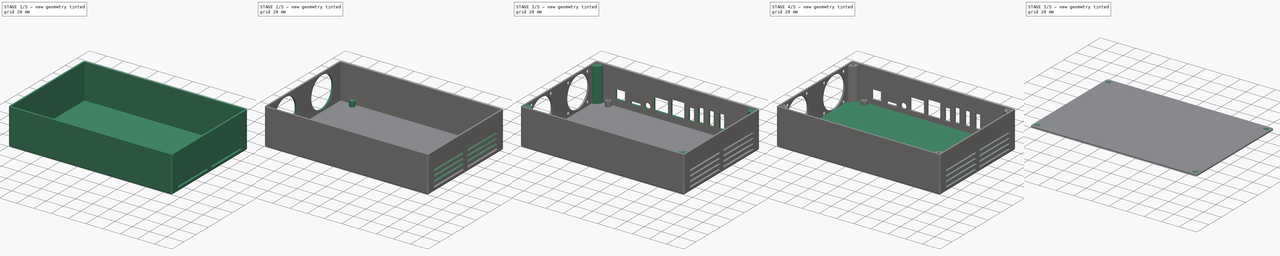
[diagram: build sequence overview — one tinted view per stage of 5, left to right]
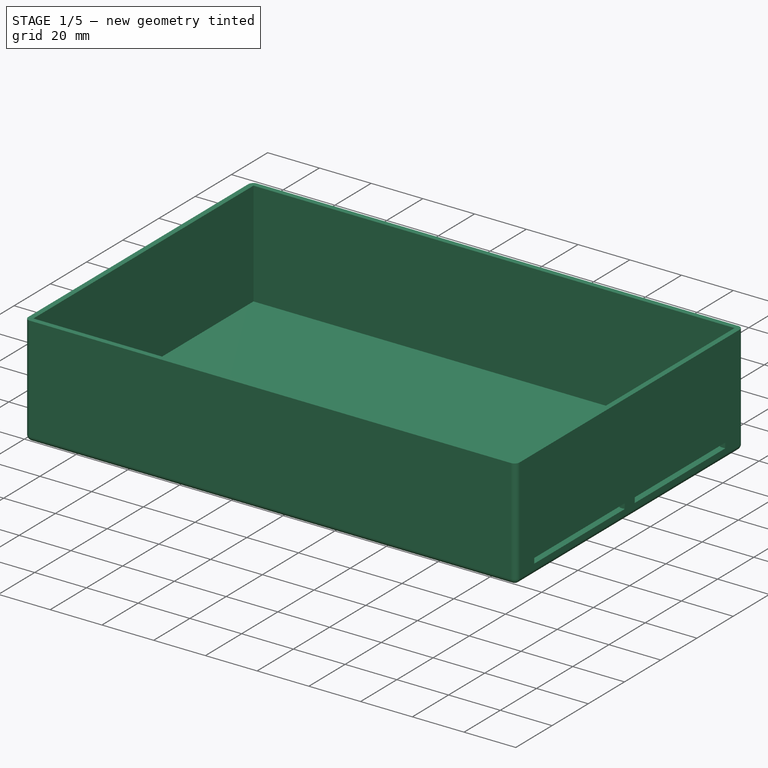
[diagram: stage 1 of 5 — iso view after this stage's code; geometry added in this stage tinted green]
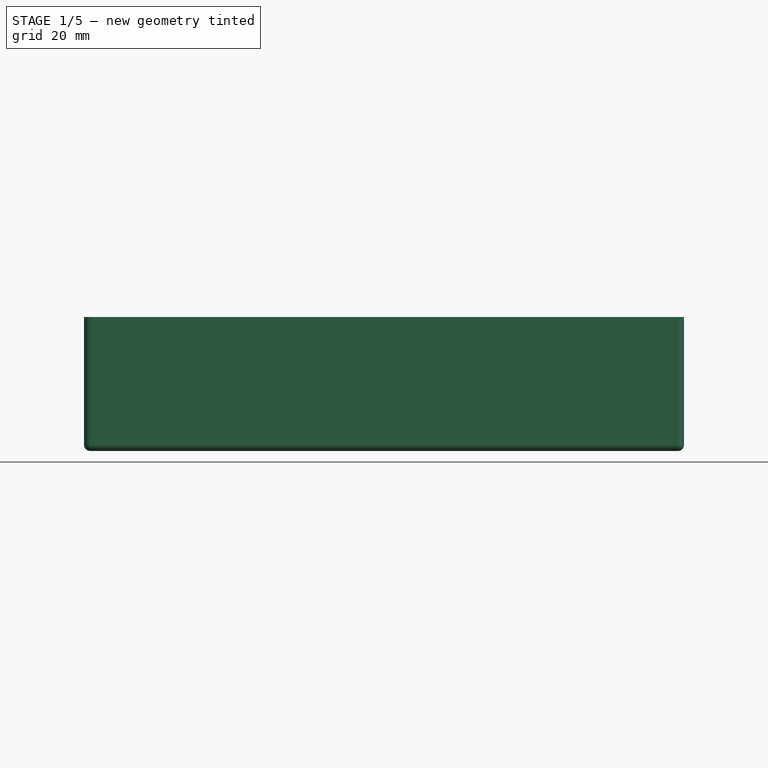
[diagram: stage 1 of 5 — front view after this stage's code; geometry added in this stage tinted green]
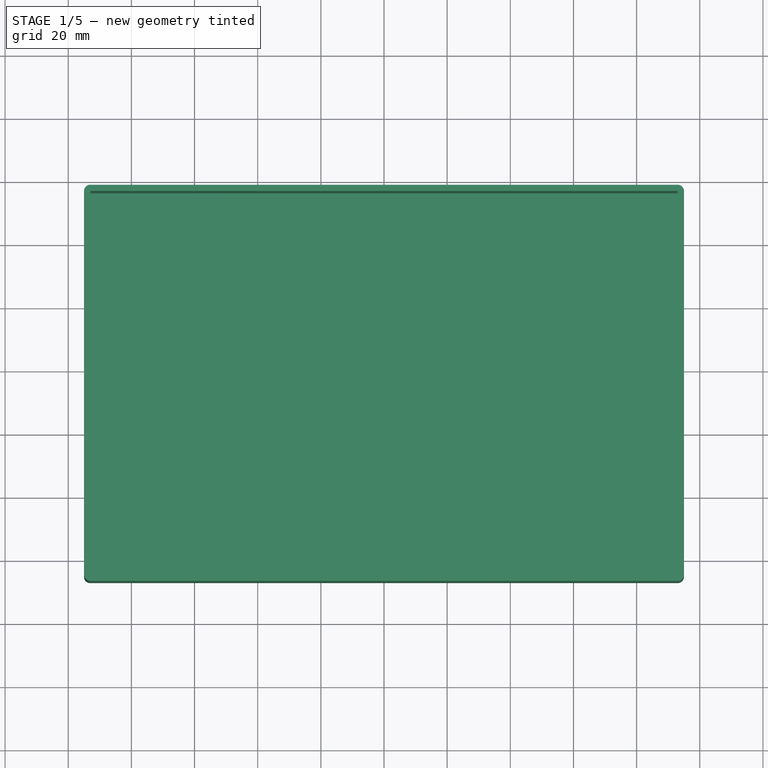
[diagram: stage 1 of 5 — top view after this stage's code; geometry added in this stage tinted green]
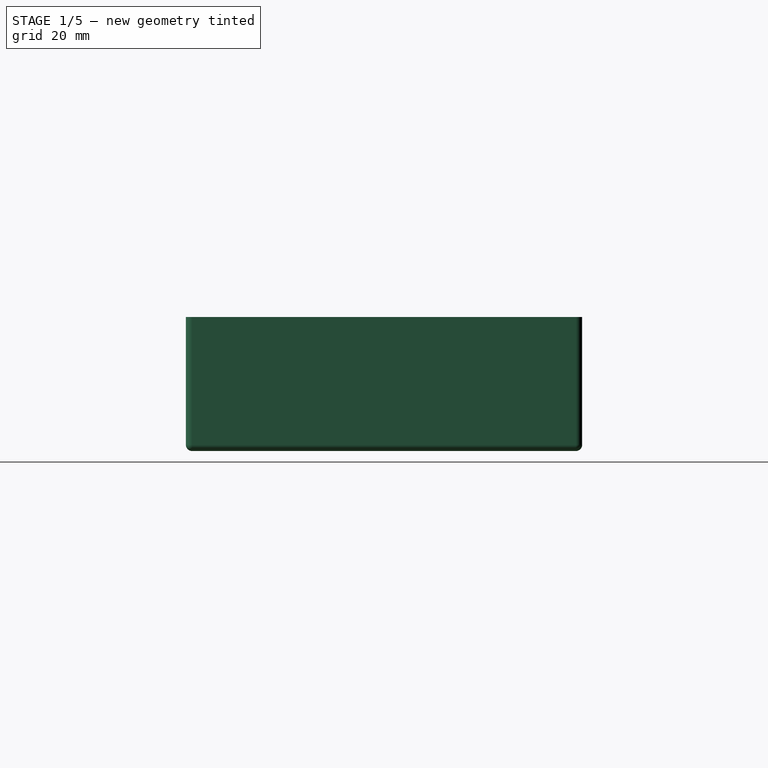
[diagram: stage 1 of 5 — right view after this stage's code; geometry added in this stage tinted green]
FCSTD DOCUMENT  (FreeCAD 0.21R33675 (Git))
Label: CM3588_NAS case
License: All rights reserved
LicenseURL: http://en.wikipedia.org/wiki/All_rights_reserved
objects: Sketcher::SketchObject×13, PartDesign::Pad×5, PartDesign::Pocket×4, PartDesign::Hole×4, PartDesign::ShapeBinder×2, PartDesign::Body×2, App::Part×2, Part::Part2DObjectPython×1, Spreadsheet::Sheet×1, PartDesign::Thickness×1, PartDesign::LinearPattern×1, PartDesign::Fillet×1
note: 49 computed .brp shape members not serialized (recipe doc carries the construction recipe); baked Part::Feature solids carry a one-line shape summary decoded from their .brp

FEATURE [Part::Part2DObjectPython] Block  # Draft 2D object (typed FeaturePython)
FEATURE [Sketcher::SketchObject] Sketch  label="Base sketch"
  ExternalGeometry = -> [Block]
  FullyConstrained = true
  MapMode = 5
  Support = -> [XY_Plane001]
  expr: Constraints[10] = <<Dimensions>>.Spacing_H
  expr: Constraints[11] = <<Dimensions>>.Spacing_H
  expr: Constraints[8] = <<Dimensions>>.Spacing_V
  expr: Constraints[9] = 5
  sketch-geometry (4):
    g0: LineSegment StartX=-13 StartY=116.5 StartZ=0 EndX=173 EndY=116.5 EndZ=0
    g1: LineSegment StartX=173 StartY=116.5 StartZ=0 EndX=173 EndY=-5 EndZ=0
    g2: LineSegment StartX=173 StartY=-5 StartZ=0 EndX=-13 EndY=-5 EndZ=0
    g3: LineSegment StartX=-13 StartY=-5 StartZ=0 EndX=-13 EndY=116.5 EndZ=0
  constraints (12):
    c: Coincident(g0,g1)
    c: Coincident(g1,g2)
    c: Coincident(g2,g3)
    c: Coincident(g3,g0)
    c: Horizontal(g0)
    c: Horizontal(g2)
    c: Vertical(g1)
    c: Vertical(g3)
    c: DistanceY(g-5,g0) = 0.5
    c: DistanceY(g1,g-4) = 5
    c: DistanceX(g-5,g0) = 13
    c: DistanceX(g0,g-6) = 13
FEATURE [Spreadsheet::Sheet] Spreadsheet  label="Dimensions"
  cells = A1='Wall; B1(Wall)==2 mm; A2='Spacing V; B2(Spacing_V)==0.5 mm; A3='Spacing H; B3(Spacing_H)==(B6 - B5 - 2 * B1) / 2; A4='Height; B4(Height)==44.45 mm; A5='PCB Width; B5(PCB_Width)==160 mm; A6='Width; B6(Width)==190 mm; A7='Feet; B7(Feet)==6 mm; A8='PCB; B8(PCB)==1.5 mm
FEATURE [PartDesign::Pad] Pad  label="Base pad"
  Direction = (0,0,1)
  Length = 40.45
  Length2 = 10
  Profile = -> Sketch
  ReferenceAxis = -> Sketch [N_Axis]
  Type = 0
  expr: Length = <<Dimensions>>.Height - 2 * <<Dimensions>>.Wall
FEATURE [PartDesign::Thickness] Thickness
  Base = -> Pad [Face6]
  BaseFeature = -> Pad
  Intersection = false
  Join = 0
  Mode = 0
  SupportTransform = false
  Value = 2
  expr: Value = <<Dimensions>>.Wall
FEATURE [Sketcher::SketchObject] Sketch001  label="Vent holes"
  ExternalGeometry = -> [Thickness]
  FullyConstrained = true
  MapMode = 5
  Placement = pos=(175,0,0) rot=(0.57735,0.57735,0.57735;2.0944rad)
  Support = -> [Thickness]
  sketch-geometry (8):
    g0: LineSegment StartX=3 StartY=4 StartZ=0 EndX=53 EndY=4 EndZ=0
    g1: LineSegment StartX=53 StartY=4 StartZ=0 EndX=53 EndY=2 EndZ=0
    g2: LineSegment StartX=53 StartY=2 StartZ=0 EndX=3 EndY=2 EndZ=0
    g3: LineSegment StartX=3 StartY=2 StartZ=0 EndX=3 EndY=4 EndZ=0
    g4: LineSegment StartX=108.5 StartY=2 StartZ=0 EndX=58.4998 EndY=2 EndZ=0
    g5: LineSegment StartX=58.4998 StartY=2 StartZ=0 EndX=58.4998 EndY=4 EndZ=0
    g6: LineSegment StartX=58.4998 StartY=4 StartZ=0 EndX=108.5 EndY=4 EndZ=0
    g7: LineSegment StartX=108.5 StartY=4 StartZ=0 EndX=108.5 EndY=2 EndZ=0
  constraints (24):
    c: Coincident(g0,g1)
    c: Coincident(g1,g2)
    c: Coincident(g2,g3)
    c: Coincident(g3,g0)
    c: Horizontal(g0)
    c: Horizontal(g2)
    c: Vertical(g1)
    c: Vertical(g3)
    c: DistanceY(g3,g3) = 2
    c: DistanceX(g0,g0) = 50
    c: DistanceX(g-3,g2) = 8
    c: DistanceY(g-3,g2) = 2
    c: Coincident(g4,g5)
    c: Coincident(g5,g6)
    c: Coincident(g6,g7)
    c: Coincident(g7,g4)
    c: Horizontal(g4)
    c: Horizontal(g6)
    c: Vertical(g5)
    c: Vertical(g7)
    c: DistanceX(g6,g6) = 50
    c: DistanceY(g5,g5) = 2
    c: DistanceY(g-4,g4) = 2
    c: DistanceX(g4,g-4) = 8
FEATURE [PartDesign::Pocket] Pocket
  BaseFeature = -> Thickness
  Direction = (-1,0,0)
  Length = 2
  Length2 = 5
  Profile = -> Sketch001
  ReferenceAxis = -> Sketch001 [N_Axis]
  Type = 0
  expr: Length = <<Dimensions>>.Wall
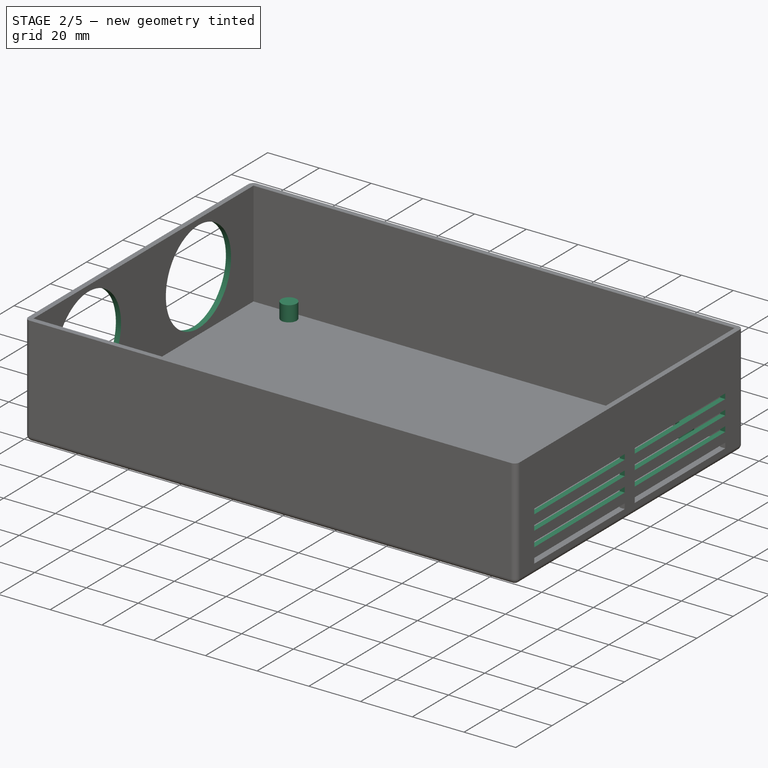
[diagram: stage 2 of 5 — iso view after this stage's code; geometry added in this stage tinted green]
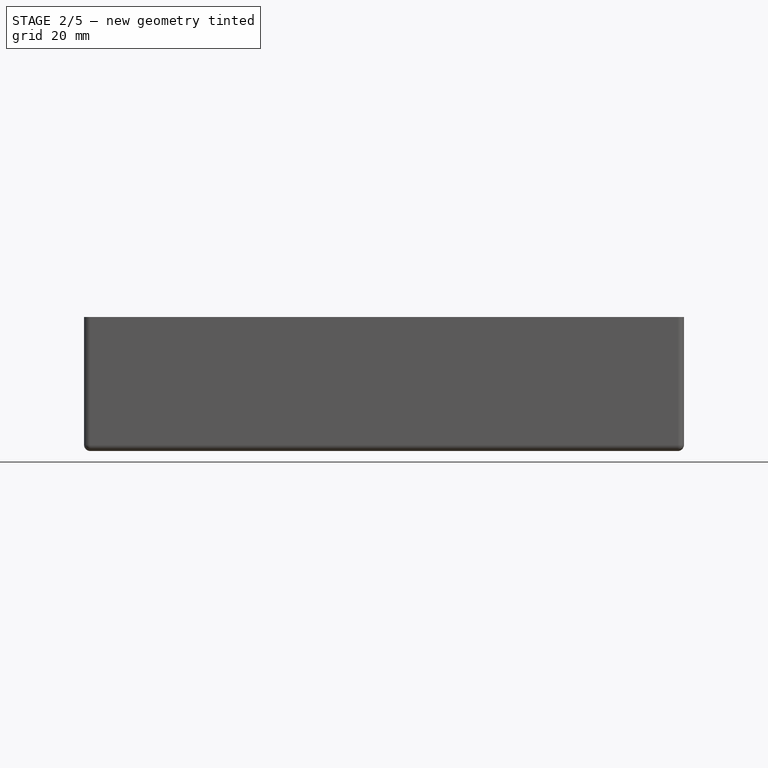
[diagram: stage 2 of 5 — front view after this stage's code; geometry added in this stage tinted green]
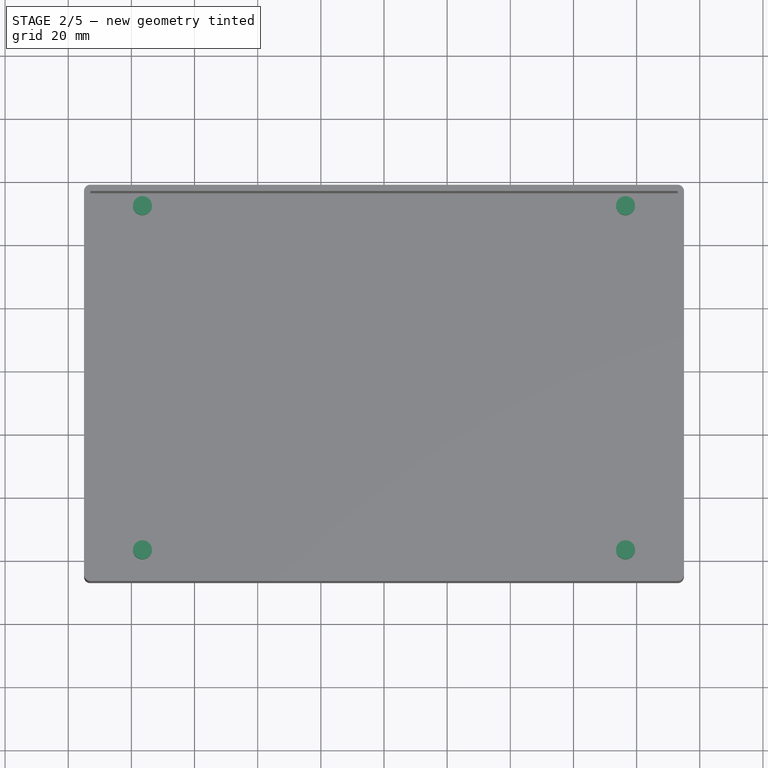
[diagram: stage 2 of 5 — top view after this stage's code; geometry added in this stage tinted green]
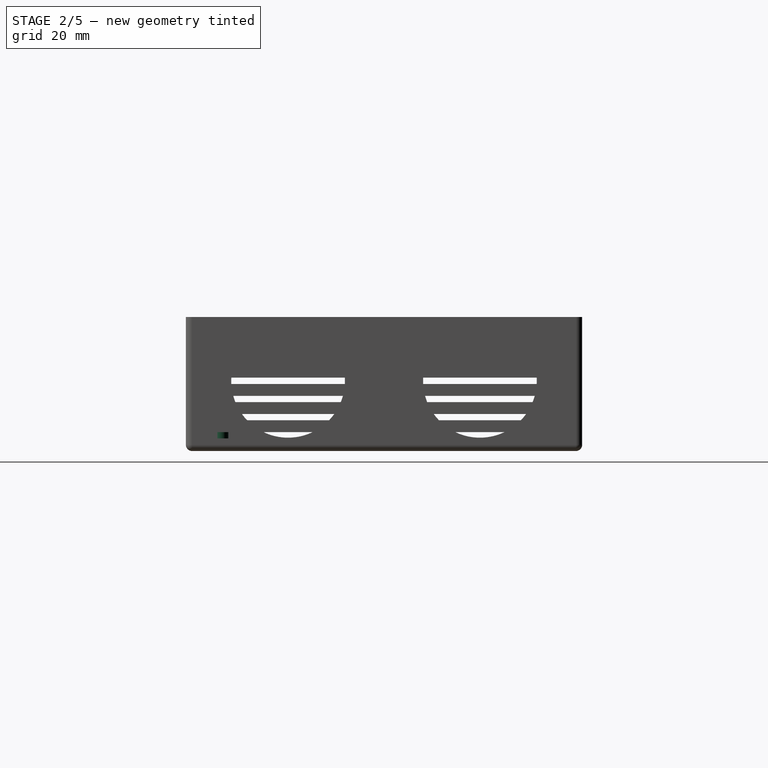
[diagram: stage 2 of 5 — right view after this stage's code; geometry added in this stage tinted green]
FEATURE [PartDesign::LinearPattern] LinearPattern
  BaseFeature = -> Pocket
  Direction = -> Sketch001 [V_Axis]
  Length = 17.225
  Occurrences = 4
  Originals = -> [Pocket]
  expr: Length = (<<Dimensions>>.Height - 5 * <<Dimensions>>.Wall) / 2
FEATURE [Sketcher::SketchObject] Sketch002  label="Fan"
  ExternalGeometry = -> [LinearPattern]
  FullyConstrained = true
  MapMode = 5
  Placement = pos=(-15,0,0) rot=(0.57735,-0.57735,-0.57735;2.0944rad)
  Support = -> [LinearPattern]
  sketch-geometry (8):
    g0: LineSegment StartX=-116.5 StartY=40.45 StartZ=0 EndX=-116.5 EndY=20.225 EndZ=0
    g1: LineSegment StartX=-116.5 StartY=20.225 StartZ=0 EndX=-116.5 EndY=0 EndZ=0
    g2: LineSegment StartX=-116.5 StartY=0 StartZ=0 EndX=-86.1248 EndY=0 EndZ=0
    g3: LineSegment StartX=-86.1248 StartY=0 StartZ=0 EndX=-55.7499 EndY=0 EndZ=0
    g4: LineSegment StartX=-55.7499 StartY=0 StartZ=0 EndX=-25.3749 EndY=0 EndZ=0
    g5: LineSegment StartX=-25.3749 StartY=0 StartZ=0 EndX=5 EndY=0 EndZ=0
    g6: Circle CenterX=-86.1248 CenterY=20.225 CenterZ=0 NormalX=0 NormalY=0 NormalZ=1 AngleXU=0 Radius=18
    g7: Circle CenterX=-25.3749 CenterY=20.225 CenterZ=0 NormalX=0 NormalY=0 NormalZ=1 AngleXU=0 Radius=18
  constraints (18):
    c: Coincident(g0,g1)
    c: Coincident(g1,g2)
    c: Coincident(g2,g3)
    c: Coincident(g3,g4)
    c: Symmetric(g0,g1,g0)
    c: Symmetric(g1,g3,g2)
    c: Diameter(g6) = 36
    c: Equal(g7,g6)
    c: Vertical(g6,g2)
    c: Vertical(g7,g4)
    c: Horizontal(g6,g0)
    c: Horizontal(g7,g0)
    c: Coincident(g4,g5)
    c: Symmetric(g3,g5,g4)
    c: Symmetric(g1,g5,g3)
    c: Coincident(g5,g-4)
    c: Coincident(g1,g-4)
    c: Coincident(g0,g-3)
FEATURE [PartDesign::Pocket] Pocket001
  BaseFeature = -> LinearPattern
  Direction = (1,0,0)
  Length = 2
  Length2 = 5
  Profile = -> Sketch002
  ReferenceAxis = -> Sketch002 [N_Axis]
  Type = 0
  expr: Length = <<Dimensions>>.Wall
FEATURE [Sketcher::SketchObject] Sketch004  label="Front panel"
  ExternalGeometry = -> [Block]
  FullyConstrained = true
  MapMode = 5
  Placement = pos=(0,118.5,0) rot=(0,0.707107,0.707107;3.14159rad)
  expr: Constraints[107] = <<Dimensions>>.Feet + <<Dimensions>>.PCB
  expr: Constraints[125] = <<Dimensions>>.Feet + <<Dimensions>>.PCB
  expr: Constraints[132] = <<Dimensions>>.Feet + <<Dimensions>>.PCB + 2.5 mm
  expr: Constraints[150] = <<Dimensions>>.Feet + <<Dimensions>>.PCB - 0.5 mm
  expr: Constraints[168] = <<Dimensions>>.Feet + <<Dimensions>>.PCB
  expr: Constraints[42] = <<Dimensions>>.Feet + <<Dimensions>>.PCB + 1 mm
  expr: Constraints[62] = <<Dimensions>>.Feet + <<Dimensions>>.PCB + 1 mm
  expr: Constraints[63] = <<Dimensions>>.Feet + <<Dimensions>>.PCB + 1 mm
  expr: Constraints[84] = <<Dimensions>>.Feet + <<Dimensions>>.PCB
  expr: Constraints[8] = 3.2 mm + <<Dimensions>>.PCB
  expr: Constraints[9] = <<Dimensions>>.Feet
  sketch-geometry (66):
    g0: LineSegment StartX=-150.53 StartY=10.7 StartZ=0 EndX=-141.03 EndY=10.7 EndZ=0
    g1: LineSegment StartX=-141.03 StartY=10.7 StartZ=0 EndX=-141.03 EndY=6 EndZ=0
    g2: LineSegment StartX=-150.53 StartY=6 StartZ=0 EndX=-150.53 EndY=10.7 EndZ=0
    g3: LineSegment StartX=-149.541 StartY=-6e-16 StartZ=0 EndX=-145.78 EndY=-6e-16 EndZ=0
    g4: LineSegment StartX=-145.78 StartY=-6e-16 StartZ=0 EndX=-142.019 EndY=-6e-16 EndZ=0
    g5: LineSegment StartX=-141.03 StartY=6 StartZ=0 EndX=-145.78 EndY=6 EndZ=0
    g6: LineSegment StartX=-145.78 StartY=6 StartZ=0 EndX=-150.53 EndY=6 EndZ=0
    g7: LineSegment StartX=-134.796 StartY=-2.2e-15 StartZ=0 EndX=-132.244 EndY=-2.5e-15 EndZ=0
    g8: LineSegment StartX=-132.244 StartY=-2.5e-15 StartZ=0 EndX=-129.693 EndY=-2.7e-15 EndZ=0
    g9: LineSegment StartX=-122.705 StartY=-2.2e-15 StartZ=0 EndX=-120.154 EndY=-2.5e-15 EndZ=0
    g10: LineSegment StartX=-120.154 StartY=-2.5e-15 StartZ=0 EndX=-117.602 EndY=-2.7e-15 EndZ=0
    g11: LineSegment StartX=-110.818 StartY=-2.2e-15 StartZ=0 EndX=-108.266 EndY=-2.5e-15 EndZ=0
    g12: LineSegment StartX=-108.266 StartY=-2.5e-15 StartZ=0 EndX=-105.715 EndY=-2.7e-15 EndZ=0
    g13: LineSegment StartX=-134.994 StartY=24.5 StartZ=0 EndX=-129.494 EndY=24.5 EndZ=0
    g14: LineSegment StartX=-129.494 StartY=24.5 StartZ=0 EndX=-129.494 EndY=8.5 EndZ=0
    g15: LineSegment StartX=-134.994 StartY=8.5 StartZ=0 EndX=-134.994 EndY=24.5 EndZ=0
    g16: LineSegment StartX=-129.494 StartY=8.5 StartZ=0 EndX=-132.244 EndY=8.5 EndZ=0
    g17: LineSegment StartX=-132.244 StartY=8.5 StartZ=0 EndX=-134.994 EndY=8.5 EndZ=0
    g18: LineSegment StartX=-122.904 StartY=24.5 StartZ=0 EndX=-117.404 EndY=24.5 EndZ=0
    g19: LineSegment StartX=-117.404 StartY=24.5 StartZ=0 EndX=-117.404 EndY=8.5 EndZ=0
    g20: LineSegment StartX=-122.904 StartY=8.5 StartZ=0 EndX=-122.904 EndY=24.5 EndZ=0
    g21: LineSegment StartX=-111.016 StartY=24.5 StartZ=0 EndX=-105.516 EndY=24.5 EndZ=0
    g22: LineSegment StartX=-105.516 StartY=24.5 StartZ=0 EndX=-105.516 EndY=8.5 EndZ=0
    g23: LineSegment StartX=-111.016 StartY=8.5 StartZ=0 EndX=-111.016 EndY=24.5 EndZ=0
    g24: LineSegment StartX=-117.404 StartY=8.5 StartZ=0 EndX=-120.154 EndY=8.5 EndZ=0
    g25: LineSegment StartX=-120.154 StartY=8.5 StartZ=0 EndX=-122.904 EndY=8.5 EndZ=0
    g26: LineSegment StartX=-105.516 StartY=8.5 StartZ=0 EndX=-108.266 EndY=8.5 EndZ=0
    g27: LineSegment StartX=-108.266 StartY=8.5 StartZ=0 EndX=-111.016 EndY=8.5 EndZ=0
    g28: LineSegment StartX=-100.063 StartY=21.5 StartZ=0 EndX=-94.0628 EndY=21.5 EndZ=0
    g29: LineSegment StartX=-94.0628 StartY=21.5 StartZ=0 EndX=-94.0628 EndY=7.5 EndZ=0
    g30: LineSegment StartX=-100.063 StartY=7.5 StartZ=0 EndX=-100.063 EndY=21.5 EndZ=0
    g31: LineSegment StartX=-94.0628 StartY=7.5 StartZ=0 EndX=-97.0628 EndY=7.5 EndZ=0
    g32: LineSegment StartX=-97.0628 StartY=7.5 StartZ=0 EndX=-100.063 EndY=7.5 EndZ=0
    g33: LineSegment StartX=-99.0643 StartY=-2.5e-15 StartZ=0 EndX=-97.0628 EndY=-2.5e-15 EndZ=0
    g34: LineSegment StartX=-97.0628 StartY=-2.5e-15 StartZ=0 EndX=-95.0613 EndY=-2.5e-15 EndZ=0
    g35: LineSegment StartX=-88.7386 StartY=24.5 StartZ=0 EndX=-73.7386 EndY=24.5 EndZ=0
    g36: LineSegment StartX=-73.7386 StartY=24.5 StartZ=0 EndX=-73.7386 EndY=7.5 EndZ=0
    g37: LineSegment StartX=-88.7386 StartY=7.5 StartZ=0 EndX=-88.7386 EndY=24.5 EndZ=0
    g38: LineSegment StartX=-73.7386 StartY=7.5 StartZ=0 EndX=-81.2386 EndY=7.5 EndZ=0
    g39: LineSegment StartX=-81.2386 StartY=7.5 StartZ=0 EndX=-88.7386 EndY=7.5 EndZ=0
    g40: LineSegment StartX=-81.7847 StartY=-3e-15 StartZ=0 EndX=-81.2386 EndY=-3e-15 EndZ=0
    g41: LineSegment StartX=-81.2386 StartY=-3e-15 StartZ=0 EndX=-80.6925 EndY=-3e-15 EndZ=0
    g42: LineSegment StartX=-69.0988 StartY=-2.5e-15 StartZ=0 EndX=-61.8845 EndY=-2.5e-15 EndZ=0
    g43: LineSegment StartX=-61.8845 StartY=-2.5e-15 StartZ=0 EndX=-54.6702 EndY=-2.5e-15 EndZ=0
    g44: LineSegment StartX=-69.8845 StartY=21.5 StartZ=0 EndX=-53.8845 EndY=21.5 EndZ=0
    g45: LineSegment StartX=-53.8845 StartY=21.5 StartZ=0 EndX=-53.8845 EndY=7.5 EndZ=0
    g46: LineSegment StartX=-69.8845 StartY=7.5 StartZ=0 EndX=-69.8845 EndY=21.5 EndZ=0
    g47: LineSegment StartX=-53.8845 StartY=7.5 StartZ=0 EndX=-61.8845 EndY=7.5 EndZ=0
    g48: LineSegment StartX=-61.8845 StartY=7.5 StartZ=0 EndX=-69.8845 EndY=7.5 EndZ=0
    g49: LineSegment StartX=-49.0113 StartY=-1e-15 StartZ=0 EndX=-46.166 EndY=-9e-16 EndZ=0
    g50: LineSegment StartX=-46.166 StartY=-9e-16 StartZ=0 EndX=-43.3207 EndY=-1e-15 EndZ=0
    g51: Circle CenterX=-46.166 CenterY=10 CenterZ=0 NormalX=0 NormalY=0 NormalZ=1 AngleXU=0 Radius=3.25
    g52: LineSegment StartX=-36.938 StartY=-1.5e-15 StartZ=0 EndX=-32.43 EndY=-1.5e-15 EndZ=0
    g53: LineSegment StartX=-32.43 StartY=-1.5e-15 StartZ=0 EndX=-27.922 EndY=-1.5e-15 EndZ=0
    g54: LineSegment StartX=-38.18 StartY=10 StartZ=0 EndX=-26.68 EndY=10 EndZ=0
    g55: LineSegment StartX=-26.68 StartY=10 StartZ=0 EndX=-26.68 EndY=7 EndZ=0
    g56: LineSegment StartX=-38.18 StartY=7 StartZ=0 EndX=-38.18 EndY=10 EndZ=0
    g57: LineSegment StartX=-26.68 StartY=7 StartZ=0 EndX=-32.43 EndY=7 EndZ=0
    g58: LineSegment StartX=-32.43 StartY=7 StartZ=0 EndX=-38.18 EndY=7 EndZ=0
    g59: LineSegment StartX=-15.224 StartY=-7e-16 StartZ=0 EndX=-14.716 EndY=-7e-16 EndZ=0
    g60: LineSegment StartX=-14.716 StartY=-7e-16 StartZ=0 EndX=-14.208 EndY=-7e-16 EndZ=0
    g61: LineSegment StartX=-19.966 StartY=18 StartZ=0 EndX=-9.466 EndY=18 EndZ=0
    g62: LineSegment StartX=-9.466 StartY=18 StartZ=0 EndX=-9.466 EndY=7.5 EndZ=0
    g63: LineSegment StartX=-19.966 StartY=7.5 StartZ=0 EndX=-19.966 EndY=18 EndZ=0
    g64: LineSegment StartX=-9.466 StartY=7.5 StartZ=0 EndX=-14.716 EndY=7.5 EndZ=0
    g65: LineSegment StartX=-14.716 StartY=7.5 StartZ=0 EndX=-19.966 EndY=7.5 EndZ=0
  constraints (169):
    c: Coincident(g0,g1)
    c: Coincident(g1,g5)
    c: Coincident(g6,g2)
    c: Coincident(g2,g0)
    c: Horizontal(g0)
    c: Vertical(g1)
    c: Vertical(g2)
    c: DistanceX(g0,g0) = 9.5
    c: DistanceY(g1,g1) = 4.7
    c: DistanceY(g-3,g6) = 6
    c: Coincident(g3,g-3)
    c: Coincident(g4,g3)
    c: Coincident(g4,g-4)
    c: Symmetric(g4,g3,g3)
    c: Coincident(g5,g6)
    c: Horizontal(g5)
    c: Symmetric(g1,g2,g5)
    c: Vertical(g5,g3)
    c: Coincident(g-15,g7)
    c: Coincident(g7,g8)
    c: Coincident(g8,g-16)
    c: Coincident(g-17,g9)
    c: Coincident(g9,g10)
    c: Coincident(g10,g-18)
    c: Coincident(g-19,g11)
    c: Coincident(g11,g12)
    c: Coincident(g12,g-20)
    c: Symmetric(g12,g11,g11)
    c: Symmetric(g10,g9,g9)
    c: Symmetric(g8,g7,g7)
    c: Coincident(g13,g14)
    c: Coincident(g14,g16)
    c: Coincident(g17,g15)
    c: Coincident(g15,g13)
    c: Horizontal(g13)
    c: Vertical(g14)
    c: Vertical(g15)
    c: DistanceY(g14,g14) = 16
    c: DistanceX(g17,g16) = 5.5
    c: Coincident(g16,g17)
    c: Horizontal(g16)
    c: Symmetric(g14,g15,g16)
    c: DistanceY(g7,g15) = 8.5
    c: Vertical(g16,g7)
    c: Coincident(g18,g19)
    c: Coincident(g19,g24)
    c: Coincident(g25,g20)
    c: Coincident(g20,g18)
    c: Horizontal(g18)
    c: Vertical(g19)
    c: Vertical(g20)
    c: Coincident(g21,g22)
    c: Coincident(g22,g26)
    c: Coincident(g27,g23)
    c: Coincident(g23,g21)
    c: Horizontal(g21)
    c: Vertical(g22)
    c: Vertical(g23)
    c: Equal(g21,g18)
    c: Equal(g18,g13)
    c: Equal(g22,g19)
    c: Equal(g19,g14)
    c: DistanceY(g9,g25) = 8.5
    c: DistanceY(g11,g27) = 8.5
    c: Coincident(g24,g25)
    c: Horizontal(g24)
    c: Coincident(g26,g27)
    c: Horizontal(g26)
    c: Symmetric(g22,g23,g26)
    c: Symmetric(g19,g20,g24)
    c: Vertical(g24,g9)
    c: Vertical(g26,g11)
    c: Coincident(g28,g29)
    c: Coincident(g29,g31)
    c: Coincident(g32,g30)
    c: Coincident(g30,g28)
    c: Horizontal(g28)
    c: Vertical(g29)
    c: Vertical(g30)
    c: Coincident(g31,g32)
    c: Horizontal(g31)
    c: DistanceX(g28,g28) = 6
    c: DistanceY(g29,g29) = 14
    c: Symmetric(g29,g30,g31)
    c: DistanceY(g-5,g30) = 7.5
    c: Coincident(g-5,g33)
    c: Coincident(g33,g34)
    c: Coincident(g34,g-6)
    c: Symmetric(g34,g33,g33)
    c: Vertical(g31,g33)
    c: Coincident(g35,g36)
    c: Coincident(g36,g38)
    c: Coincident(g39,g37)
    c: Coincident(g37,g35)
    c: Horizontal(g35)
    c: Vertical(g36)
    c: Vertical(g37)
    c: DistanceY(g36,g36) = 17
    c: DistanceX(g35,g35) = 15
    c: Coincident(g38,g39)
    c: Horizontal(g38)
    c: Symmetric(g36,g37,g38)
    c: Coincident(g40,g-7)
    c: Coincident(g41,g-7)
    c: Symmetric(g41,g40,g40)
    c: Coincident(g40,g41)
    c: Vertical(g38,g40)
    c: DistanceY(g40,g38) = 7.5
    c: Coincident(g-8,g42)
    c: Coincident(g42,g43)
    c: Coincident(g43,g-9)
    c: Symmetric(g42,g43,g42)
    c: Coincident(g44,g45)
    c: Coincident(g45,g47)
    c: Coincident(g48,g46)
    c: Coincident(g46,g44)
    c: Horizontal(g44)
    c: Vertical(g45)
    c: Vertical(g46)
    c: DistanceX(g44,g44) = 16
    c: DistanceY(g45,g45) = 14
    c: Coincident(g47,g48)
    c: Horizontal(g47)
    c: Symmetric(g46,g45,g47)
    c: Vertical(g47,g42)
    c: DistanceY(g42,g47) = 7.5
    c: Coincident(g-10,g49)
    c: Coincident(g49,g50)
    c: Coincident(g50,g-11)
    c: Symmetric(g50,g49,g49)
    c: Diameter(g51) = 6.5
    c: Vertical(g51,g49)
    c: DistanceY(g49,g51) = 10
    c: Coincident(g-12,g52)
    c: Coincident(g52,g53)
    c: Coincident(g53,g-13)
    c: Symmetric(g53,g52,g52)
    c: Coincident(g54,g55)
    c: Coincident(g55,g57)
    c: Coincident(g58,g56)
    c: Coincident(g56,g54)
    c: Horizontal(g54)
    c: Vertical(g55)
    c: Vertical(g56)
    c: DistanceY(g55,g55) = 3
    c: DistanceX(g54,g54) = 11.5
    c: Coincident(g57,g58)
    c: Horizontal(g57)
    c: Symmetric(g55,g56,g57)
    c: Vertical(g57,g52)
    c: DistanceY(g52,g57) = 7
    c: Coincident(g-14,g59)
    c: Coincident(g59,g60)
    c: Coincident(g60,g-14)
    c: Symmetric(g60,g59,g59)
    c: Coincident(g61,g62)
    c: Coincident(g62,g64)
    c: Coincident(g65,g63)
    c: Coincident(g63,g61)
    c: Horizontal(g61)
    c: Vertical(g62)
    c: Vertical(g63)
    c: DistanceY(g62,g62) = 10.5
    c: DistanceX(g61,g61) = 10.5
    c: Coincident(g64,g65)
    c: Horizontal(g64)
    c: Symmetric(g62,g63,g64)
    c: Vertical(g64,g59)
    c: DistanceY(g59,g64) = 7.5
FEATURE [Sketcher::SketchObject] Sketch005  label="Feet"
  ExternalGeometry = -> [Block]
  FullyConstrained = true
  MapMode = 5
  Support = -> [LinearPattern]
  sketch-geometry (4):
    g0: Circle CenterX=3.49999 CenterY=112.5 CenterZ=0 NormalX=0 NormalY=0 NormalZ=1 AngleXU=0 Radius=3
    g1: Circle CenterX=156.5 CenterY=112.5 CenterZ=0 NormalX=0 NormalY=0 NormalZ=1 AngleXU=0 Radius=3
    g2: Circle CenterX=156.5 CenterY=3.49999 CenterZ=0 NormalX=0 NormalY=0 NormalZ=1 AngleXU=0 Radius=3
    g3: Circle CenterX=3.49999 CenterY=3.49999 CenterZ=0 NormalX=0 NormalY=0 NormalZ=1 AngleXU=0 Radius=3
  constraints (8):
    c: Coincident(g0,g-4)
    c: Diameter(g0) = 6
    c: Coincident(g1,g-3)
    c: Coincident(g2,g-6)
    c: Coincident(g3,g-5)
    c: Equal(g3,g0)
    c: Equal(g1,g0)
    c: Equal(g2,g0)
FEATURE [PartDesign::Pad] Pad001  label="Feet - pad"
  BaseFeature = -> Pocket001
  Direction = (0,0,1)
  Length = 6
  Length2 = 10
  Profile = -> Sketch005
  ReferenceAxis = -> Sketch005 [N_Axis]
  Type = 0
  expr: Length = <<Dimensions>>.Feet
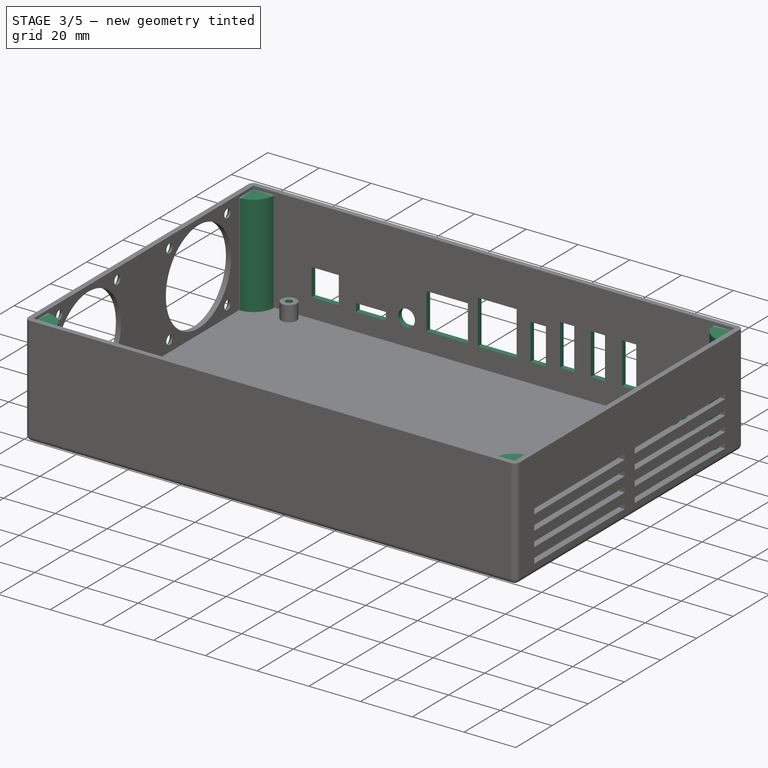
[diagram: stage 3 of 5 — iso view after this stage's code; geometry added in this stage tinted green]
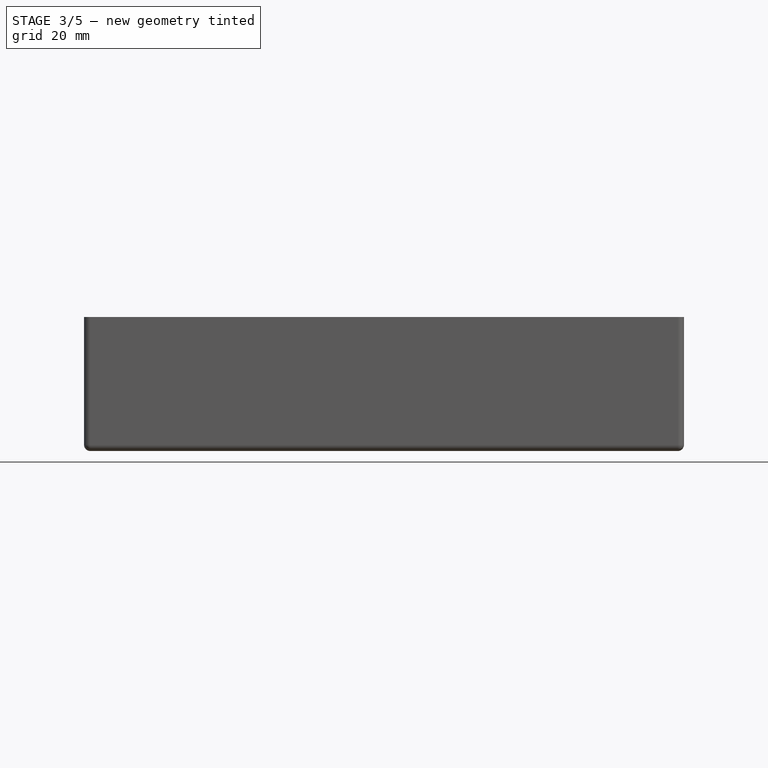
[diagram: stage 3 of 5 — front view after this stage's code; geometry added in this stage tinted green]
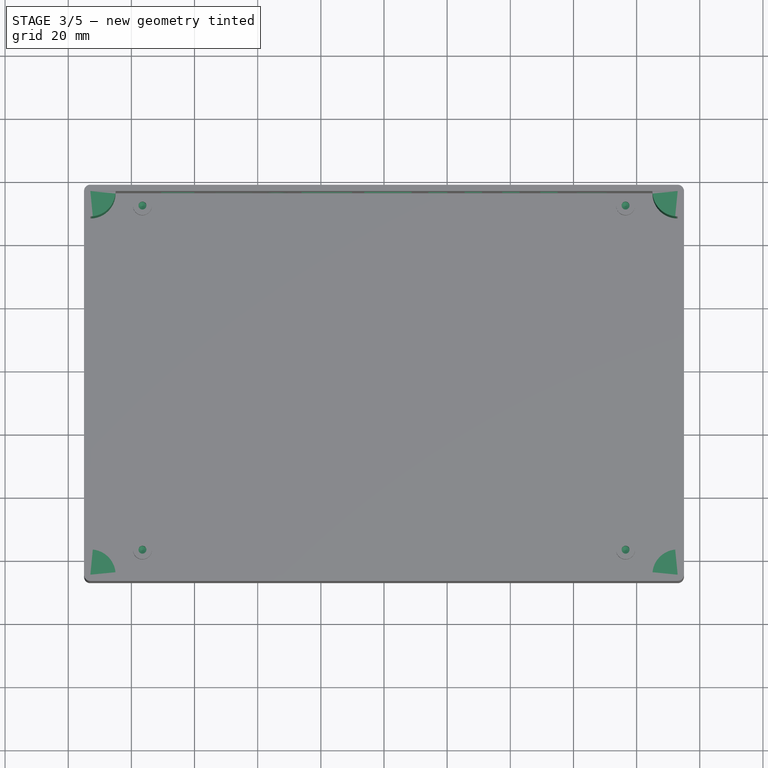
[diagram: stage 3 of 5 — top view after this stage's code; geometry added in this stage tinted green]
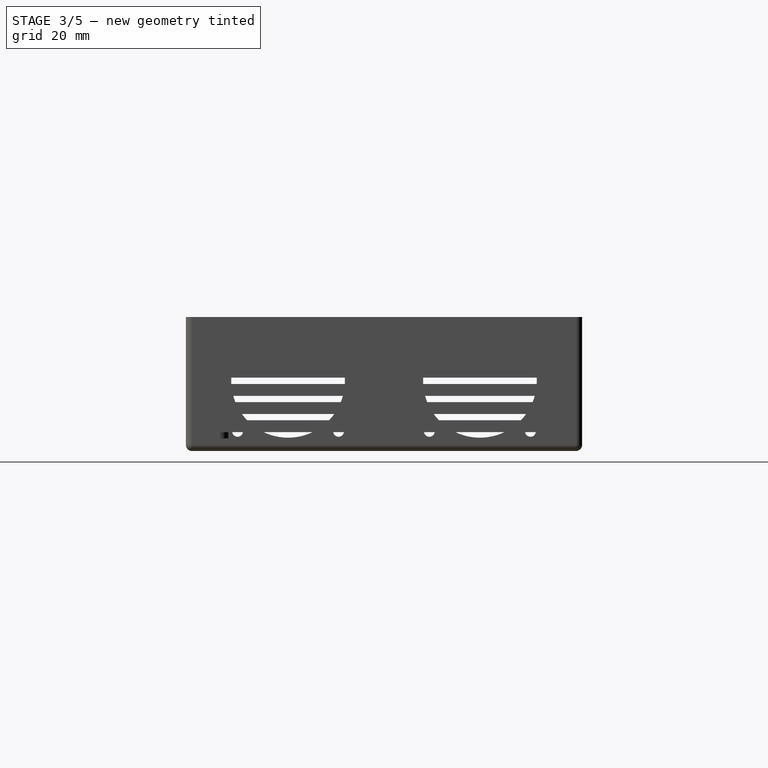
[diagram: stage 3 of 5 — right view after this stage's code; geometry added in this stage tinted green]
FEATURE [Sketcher::SketchObject] Sketch006  label="Feet screwholes"
  FullyConstrained = false
  MapMode = 5
  Placement = pos=(0,0,6) rot=(0,0,1;0rad)
  Support = -> [Pad001]
  sketch-geometry (4):
    g0: Circle CenterX=3.49999 CenterY=112.5 CenterZ=0 NormalX=0 NormalY=0 NormalZ=1 AngleXU=0 Radius=1.5
    g1: Circle CenterX=156.5 CenterY=112.5 CenterZ=0 NormalX=0 NormalY=0 NormalZ=1 AngleXU=0 Radius=1.5
    g2: Circle CenterX=156.5 CenterY=3.49999 CenterZ=0 NormalX=0 NormalY=0 NormalZ=1 AngleXU=0 Radius=1.5
    g3: Circle CenterX=3.49999 CenterY=3.49999 CenterZ=0 NormalX=0 NormalY=0 NormalZ=1 AngleXU=0 Radius=1.5
  constraints (4):
    c: Diameter(g0) = 3
    c: Equal(g1,g0)
    c: Equal(g2,g0)
    c: Equal(g3,g0)
FEATURE [PartDesign::Pocket] Pocket002
  BaseFeature = -> Pad001
  Direction = (0,-1,2e-16)
  Length = 2
  Length2 = 5
  Profile = -> Sketch004
  ReferenceAxis = -> Sketch004 [N_Axis]
  Type = 0
  expr: Length = <<Dimensions>>.Wall
FEATURE [PartDesign::Hole] Hole
  BaseFeature = -> Pocket002
  CustomThreadClearance = 0
  Depth = 6
  DepthType = 0
  Diameter = 2.5
  DrillForDepth = false
  DrillPoint = 1
  DrillPointAngle = 118
  HoleCutCountersinkAngle = 90
  HoleCutCustomValues = false
  HoleCutDepth = 0
  HoleCutDiameter = 6.1
  HoleCutType = 0
  ModelThread = false
  Profile = -> Sketch006
  Tapered = false
  TaperedAngle = 90
  ThreadClass = 0
  ThreadDepth = 6
  ThreadDepthType = 0
  ThreadDirection = 0
  ThreadFit = 0
  ThreadSize = 9
  ThreadType = 1
  Threaded = true
  UseCustomThreadClearance = false
  expr: Depth = <<Dimensions>>.Feet
FEATURE [Sketcher::SketchObject] Sketch007
  ExternalGeometry = -> [Hole]
  FullyConstrained = true
  MapMode = 5
  Placement = pos=(-15,0,0) rot=(0.57735,-0.57735,-0.57735;2.0944rad)
  Support = -> [Hole]
  sketch-geometry (16):
    g0: LineSegment StartX=-116.5 StartY=40.45 StartZ=0 EndX=-116.5 EndY=20.225 EndZ=0
    g1: LineSegment StartX=-116.5 StartY=20.225 StartZ=0 EndX=-116.5 EndY=0 EndZ=0
    g2: LineSegment StartX=-116.5 StartY=0 StartZ=0 EndX=-86.1248 EndY=1.92e-14 EndZ=0
    g3: LineSegment StartX=-86.1248 StartY=1.92e-14 StartZ=0 EndX=-55.7499 EndY=0 EndZ=0
    g4: LineSegment StartX=-55.7499 StartY=0 StartZ=0 EndX=-25.3749 EndY=-8.71e-14 EndZ=0
    g5: LineSegment StartX=-25.3749 StartY=-8.71e-14 StartZ=0 EndX=5 EndY=0 EndZ=0
    g6: Circle CenterX=-102.125 CenterY=36.225 CenterZ=0 NormalX=0 NormalY=0 NormalZ=1 AngleXU=0 Radius=1.5
    g7: Circle CenterX=-70.1248 CenterY=36.225 CenterZ=0 NormalX=0 NormalY=0 NormalZ=1 AngleXU=0 Radius=1.5
    g8: Circle CenterX=-41.3749 CenterY=36.225 CenterZ=0 NormalX=0 NormalY=0 NormalZ=1 AngleXU=0 Radius=1.5
    g9: Circle CenterX=-9.37494 CenterY=36.225 CenterZ=0 NormalX=0 NormalY=0 NormalZ=1 AngleXU=0 Radius=1.5
    g10: Circle CenterX=-9.37494 CenterY=4.225 CenterZ=0 NormalX=0 NormalY=0 NormalZ=1 AngleXU=0 Radius=1.5
    g11: Circle CenterX=-41.3749 CenterY=4.225 CenterZ=0 NormalX=0 NormalY=0 NormalZ=1 AngleXU=0 Radius=1.5
    g12: Circle CenterX=-70.1248 CenterY=4.225 CenterZ=0 NormalX=0 NormalY=0 NormalZ=1 AngleXU=0 Radius=1.5
    g13: Circle CenterX=-102.125 CenterY=4.225 CenterZ=0 NormalX=0 NormalY=0 NormalZ=1 AngleXU=0 Radius=1.5
    g14: Circle CenterX=-86.1248 CenterY=20.225 CenterZ=0 NormalX=0 NormalY=0 NormalZ=1 AngleXU=0 Radius=5
    g15: Circle CenterX=-25.3749 CenterY=20.225 CenterZ=0 NormalX=0 NormalY=0 NormalZ=1 AngleXU=0 Radius=5
  constraints (42):
    c: Coincident(g0,g1)
    c: Coincident(g1,g2)
    c: Coincident(g2,g3)
    c: Coincident(g3,g4)
    c: Coincident(g4,g5)
    c: Symmetric(g0,g1,g0)
    c: Symmetric(g1,g5,g3)
    c: Symmetric(g1,g3,g2)
    c: Symmetric(g5,g3,g4)
    c: Diameter(g6) = 3
    c: Equal(g7,g6)
    c: Equal(g8,g6)
    c: Equal(g9,g6)
    c: Equal(g10,g6)
    c: Equal(g11,g6)
    c: Equal(g12,g6)
    c: Equal(g13,g6)
    c: DistanceX(g6,g7) = 32
    c: DistanceY(g13,g6) = 32
    c: DistanceY(g11,g8) = 32
    c: DistanceX(g8,g9) = 32
    c: Vertical(g6,g13)
    c: Vertical(g7,g12)
    c: Vertical(g8,g11)
    c: Vertical(g9,g10)
    c: Horizontal(g6,g7)
    c: Horizontal(g8,g9)
    c: Horizontal(g13,g12)
    c: Horizontal(g11,g10)
    c: Diameter(g14) = 10
    c: Equal(g15,g14)
    c: Vertical(g14,g2)
    c: Vertical(g15,g4)
    c: Horizontal(g15,g0)
    c: Horizontal(g14,g0)
    c: DistanceX(g6,g14) = 16
    c: DistanceX(g8,g15) = 16
    c: DistanceY(g14,g6) = 16
    c: DistanceY(g15,g8) = 16
    c: Coincident(g0,g-3)
    c: Coincident(g1,g-4)
    c: Coincident(g5,g-4)
FEATURE [PartDesign::Hole] Hole001
  BaseFeature = -> Hole
  CustomThreadClearance = 0
  Depth = 2
  DepthType = 0
  Diameter = 3.4
  DrillForDepth = false
  DrillPoint = 1
  DrillPointAngle = 118
  HoleCutCountersinkAngle = 90
  HoleCutCustomValues = false
  HoleCutDepth = 0
  HoleCutDiameter = 6.1
  HoleCutType = 2
  ModelThread = false
  Profile = -> Sketch007
  Tapered = false
  TaperedAngle = 90
  ThreadClass = 0
  ThreadDepth = 2
  ThreadDepthType = 0
  ThreadDirection = 0
  ThreadFit = 0
  ThreadSize = 9
  ThreadType = 1
  Threaded = false
  UseCustomThreadClearance = false
  expr: Depth = <<Dimensions>>.Wall
FEATURE [Sketcher::SketchObject] Sketch010
  ExternalGeometry = -> [Hole001]
  FullyConstrained = true
  MapMode = 5
  Support = -> [Hole001]
  sketch-geometry (12):
    g0: LineSegment StartX=-13 StartY=116.5 StartZ=0 EndX=-5 EndY=116.5 EndZ=0
    g1: ArcOfCircle CenterX=-13 CenterY=116.5 CenterZ=0 NormalX=0 NormalY=0 NormalZ=1 AngleXU=0 Radius=8 StartAngle=4.71239 EndAngle=6.28319
    g2: LineSegment StartX=-13 StartY=108.5 StartZ=0 EndX=-13 EndY=116.5 EndZ=0
    g3: LineSegment StartX=173 StartY=116.5 StartZ=0 EndX=165 EndY=116.5 EndZ=0
    g4: ArcOfCircle CenterX=173 CenterY=116.5 CenterZ=0 NormalX=0 NormalY=0 NormalZ=1 AngleXU=0 Radius=8 StartAngle=3.14159 EndAngle=4.71239
    g5: LineSegment StartX=173 StartY=108.5 StartZ=0 EndX=173 EndY=116.5 EndZ=0
    g6: LineSegment StartX=173 StartY=-5 StartZ=0 EndX=173 EndY=3 EndZ=0
    g7: ArcOfCircle CenterX=173 CenterY=-5 CenterZ=0 NormalX=0 NormalY=0 NormalZ=1 AngleXU=0 Radius=8 StartAngle=1.5708 EndAngle=3.14159
    g8: LineSegment StartX=165 StartY=-5 StartZ=0 EndX=173 EndY=-5 EndZ=0
    g9: LineSegment StartX=-13 StartY=-5 StartZ=0 EndX=-13 EndY=3 EndZ=0
    g10: ArcOfCircle CenterX=-13 CenterY=-5 CenterZ=0 NormalX=0 NormalY=0 NormalZ=1 AngleXU=0 Radius=8 StartAngle=0 EndAngle=1.5708
    g11: LineSegment StartX=-5 StartY=-5 StartZ=0 EndX=-13 EndY=-5 EndZ=0
  constraints (32):
    c: Horizontal(g0)
    c: Coincident(g1,g2)
    c: Coincident(g1,g0)
    c: Coincident(g1,g0)
    c: Coincident(g2,g0)
    c: Vertical(g2)
    c: DistanceX(g0,g0) = 8
    c: Coincident(g4,g5)
    c: Coincident(g5,g3)
    c: Coincident(g4,g3)
    c: Coincident(g3,g4)
    c: Horizontal(g3)
    c: Vertical(g5)
    c: DistanceX(g3,g3) = 8
    c: Coincident(g7,g8)
    c: Coincident(g8,g7)
    c: Coincident(g7,g6)
    c: Coincident(g7,g6)
    c: Vertical(g6)
    c: Horizontal(g8)
    c: DistanceX(g8,g8) = 8
    c: Coincident(g10,g11)
    c: Coincident(g11,g9)
    c: Coincident(g9,g10)
    c: Coincident(g10,g9)
    c: Vertical(g9)
    c: Horizontal(g11)
    c: DistanceX(g11,g11) = 8
    c: Coincident(g3,g-6)
    c: Coincident(g6,g-6)
    c: Coincident(g9,g-5)
    c: Coincident(g0,g-4)
FEATURE [PartDesign::Pad] Pad004  label="Lid mounting"
  BaseFeature = -> Hole001
  Direction = (0,0,1)
  Length = 39.25
  Length2 = 10
  Profile = -> Sketch010
  ReferenceAxis = -> Sketch010 [N_Axis]
  Type = 0
  expr: Length = <<Dimensions>>.Height - 2 * <<Dimensions>>.Wall - 1.2 mm
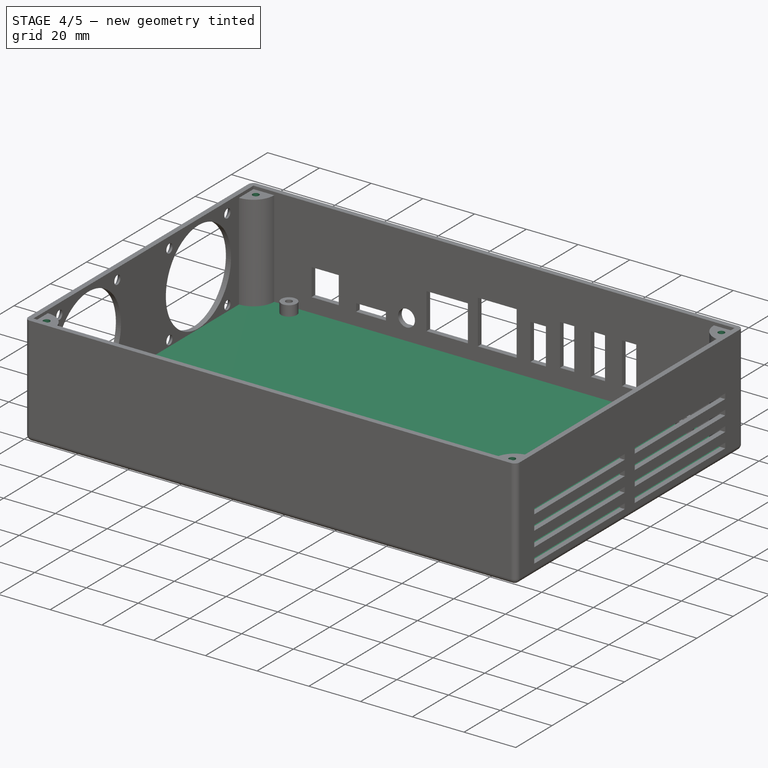
[diagram: stage 4 of 5 — iso view after this stage's code; geometry added in this stage tinted green]
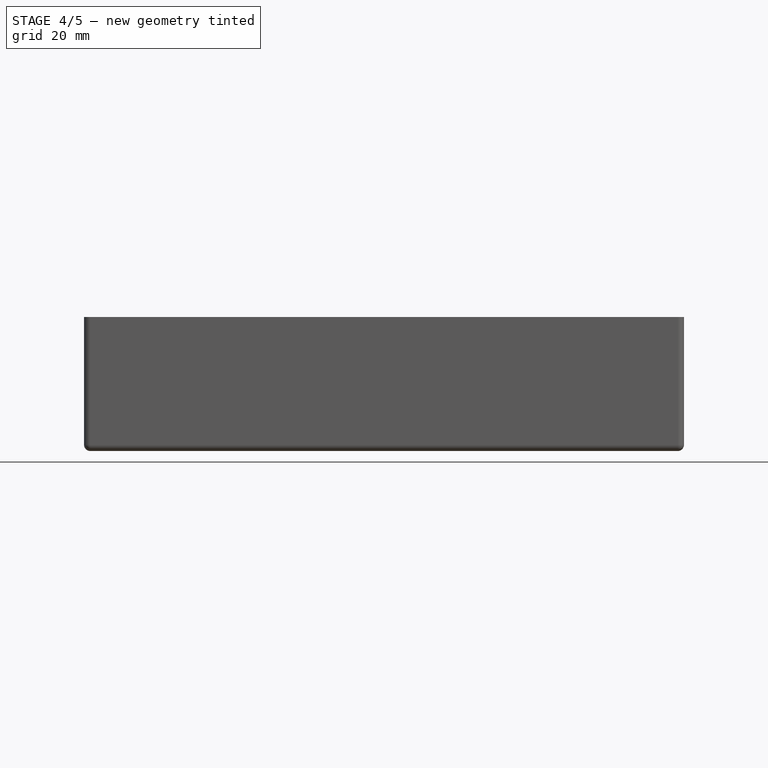
[diagram: stage 4 of 5 — front view after this stage's code; geometry added in this stage tinted green]
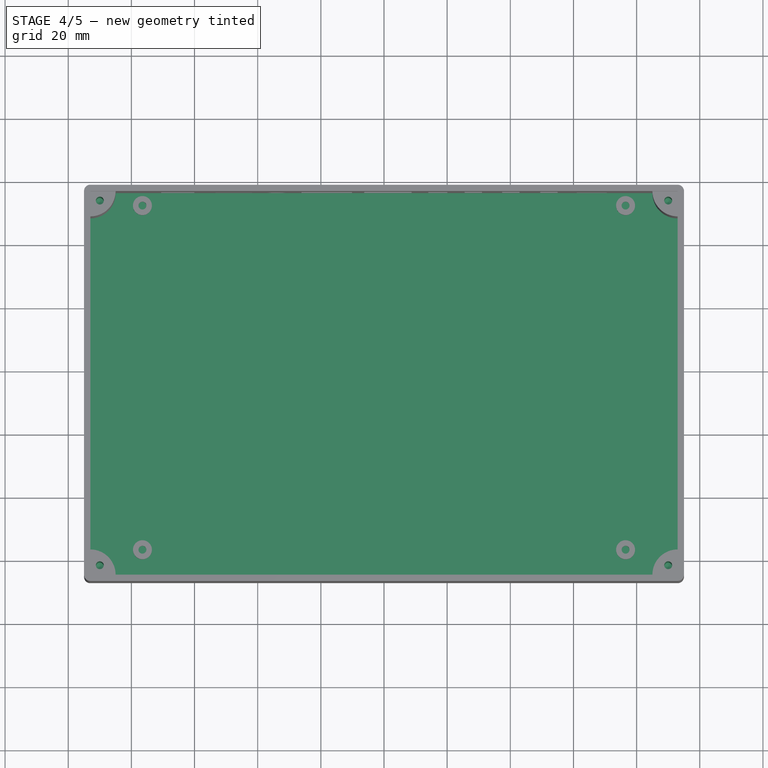
[diagram: stage 4 of 5 — top view after this stage's code; geometry added in this stage tinted green]
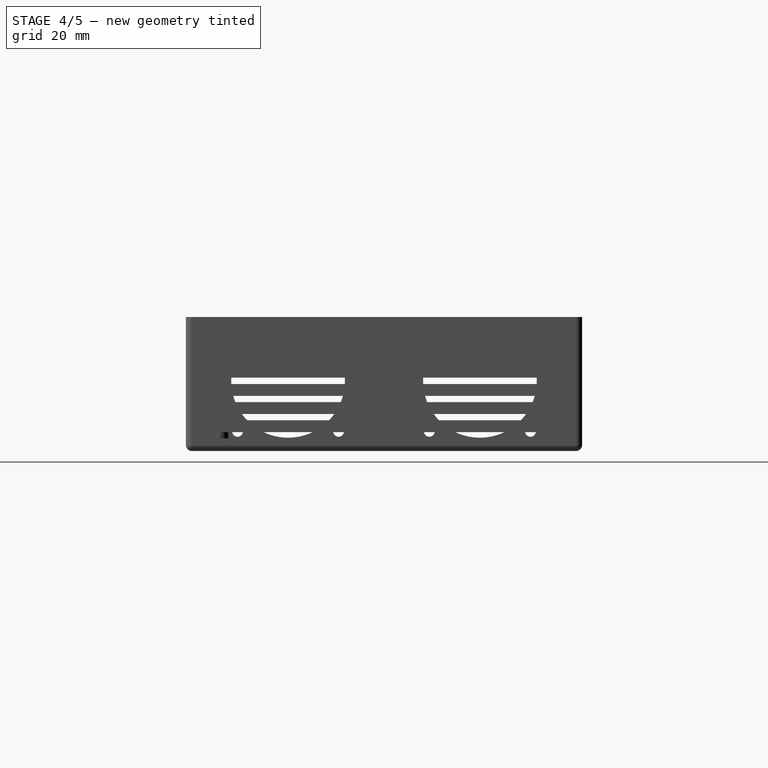
[diagram: stage 4 of 5 — right view after this stage's code; geometry added in this stage tinted green]
FEATURE [PartDesign::ShapeBinder] ShapeBinder
  Support = -> [Thickness]
  TraceSupport = false
FEATURE [Sketcher::SketchObject] Sketch008
  ExternalGeometry = -> [ShapeBinder]
  FullyConstrained = true
  MapMode = 5
  Support = -> [XY_Plane003]
  sketch-geometry (8):
    g0: LineSegment StartX=-13 StartY=118.5 StartZ=0 EndX=173 EndY=118.5 EndZ=0
    g1: ArcOfCircle CenterX=173 CenterY=116.5 CenterZ=0 NormalX=0 NormalY=0 NormalZ=1 AngleXU=0 Radius=2 StartAngle=-2.7e-15 EndAngle=1.5708
    g2: LineSegment StartX=175 StartY=116.5 StartZ=0 EndX=175 EndY=-5 EndZ=0
    g3: ArcOfCircle CenterX=173 CenterY=-5 CenterZ=0 NormalX=0 NormalY=0 NormalZ=1 AngleXU=0 Radius=2 StartAngle=4.71239 EndAngle=6.28319
    g4: LineSegment StartX=173 StartY=-7 StartZ=0 EndX=-13 EndY=-7 EndZ=0
    g5: ArcOfCircle CenterX=-13 CenterY=-5 CenterZ=0 NormalX=0 NormalY=0 NormalZ=1 AngleXU=0 Radius=2 StartAngle=3.14159 EndAngle=4.71239
    g6: LineSegment StartX=-15 StartY=-5 StartZ=0 EndX=-15 EndY=116.5 EndZ=0
    g7: ArcOfCircle CenterX=-13 CenterY=116.5 CenterZ=0 NormalX=0 NormalY=0 NormalZ=1 AngleXU=0 Radius=2 StartAngle=1.5708 EndAngle=3.14159
  constraints (16):
    c: Tangent(g0,g1) = 1.5708
    c: Coincident(g1,g-10)
    c: Coincident(g1,g2)
    c: Coincident(g2,g-9)
    c: Tangent(g2,g3) = 1.5708
    c: Tangent(g4,g5) = 1.5708
    c: Coincident(g5,g-8)
    c: Coincident(g5,g6)
    c: Coincident(g6,g-7)
    c: Tangent(g6,g7) = 1.5708
    c: Coincident(g7,g0)
    c: Coincident(g0,g-10)
    c: Coincident(g3,g4)
    c: Coincident(g3,g-9)
    c: Coincident(g4,g-8)
    c: Coincident(g0,g-7)
FEATURE [PartDesign::Pad] Pad002
  Direction = (0,0,1)
  Length = 2
  Length2 = 10
  Profile = -> Sketch008
  ReferenceAxis = -> Sketch008 [N_Axis]
  Type = 0
  expr: Length = <<Dimensions>>.Wall
FEATURE [PartDesign::Fillet] Fillet
  Base = -> Pad002 [Edge10,Edge7,Edge4,Edge24,Edge22,Edge19,Edge16,Edge13]
  BaseFeature = -> Pad002
  Radius = 1
  SupportTransform = false
  UseAllEdges = false
FEATURE [Sketcher::SketchObject] Sketch011
  ExternalGeometry = -> [Pad004]
  FullyConstrained = true
  MapMode = 5
  Placement = pos=(0,0,39.25) rot=(0,0,1;0rad)
  Support = -> [Pad004]
  sketch-geometry (4):
    g0: Circle CenterX=170 CenterY=-2 CenterZ=0 NormalX=0 NormalY=0 NormalZ=1 AngleXU=0 Radius=1.5
    g1: Circle CenterX=170 CenterY=113.5 CenterZ=0 NormalX=0 NormalY=0 NormalZ=1 AngleXU=0 Radius=1.5
    g2: Circle CenterX=-10 CenterY=113.5 CenterZ=0 NormalX=0 NormalY=0 NormalZ=1 AngleXU=0 Radius=1.5
    g3: Circle CenterX=-10 CenterY=-2 CenterZ=0 NormalX=0 NormalY=0 NormalZ=1 AngleXU=0 Radius=1.5
  constraints (12):
    c: Diameter(g0) = 3
    c: Diameter(g1) = 3
    c: Diameter(g2) = 3
    c: Diameter(g3) = 3
    c: DistanceX(g-4,g2) = 3
    c: DistanceX(g1,g-8) = 3
    c: DistanceX(g0,g-6) = 3
    c: DistanceY(g1,g-8) = 3
    c: DistanceY(g2,g-4) = 3
    c: DistanceY(g-6,g0) = 3
    c: DistanceX(g-9,g3) = 3
    c: DistanceY(g-9,g3) = 3
FEATURE [PartDesign::Hole] Hole002  label="Lid screw holes"
  BaseFeature = -> Pad004
  CustomThreadClearance = 0
  Depth = 25
  DepthType = 0
  Diameter = 2.5
  DrillForDepth = false
  DrillPoint = 1
  DrillPointAngle = 118
  HoleCutCountersinkAngle = 90
  HoleCutCustomValues = false
  HoleCutDepth = 0
  HoleCutDiameter = 6.1
  HoleCutType = 0
  ModelThread = false
  Profile = -> Sketch011
  Tapered = false
  TaperedAngle = 90
  ThreadClass = 0
  ThreadDepth = 25
  ThreadDepthType = 0
  ThreadDirection = 0
  ThreadFit = 0
  ThreadSize = 9
  ThreadType = 1
  Threaded = true
  UseCustomThreadClearance = false
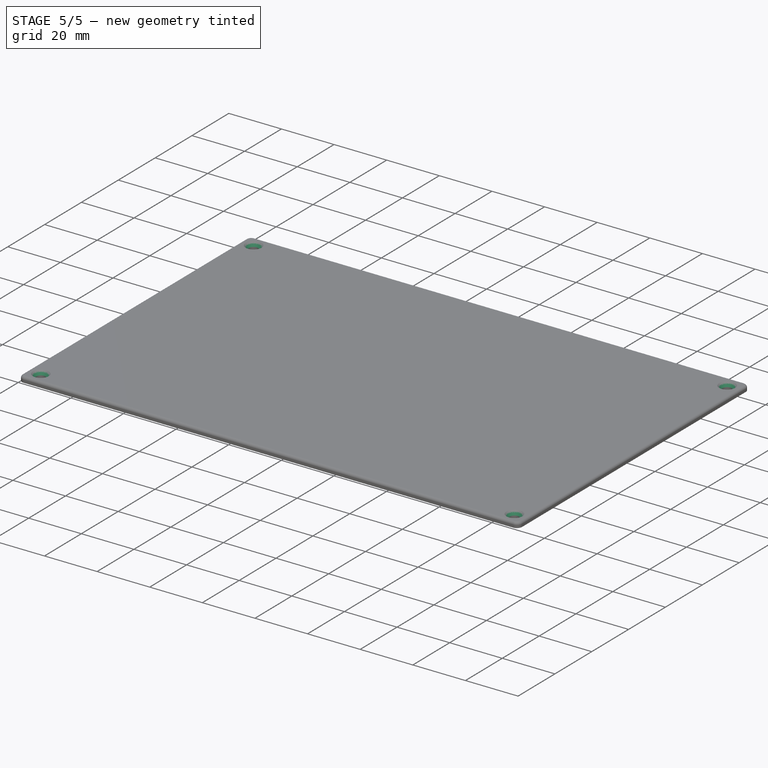
[diagram: stage 5 of 5 — iso view after this stage's code; geometry added in this stage tinted green]
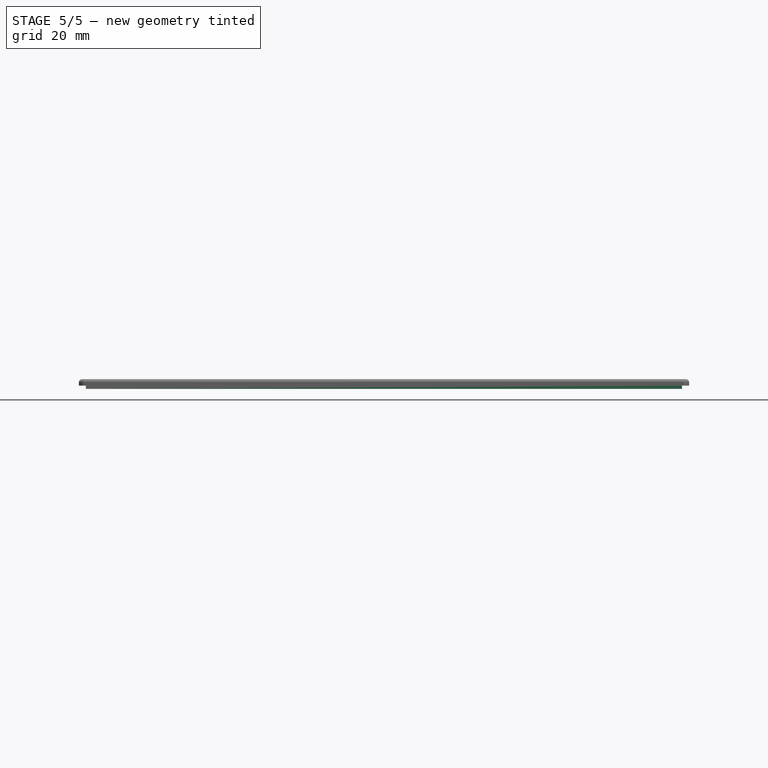
[diagram: stage 5 of 5 — front view after this stage's code; geometry added in this stage tinted green]
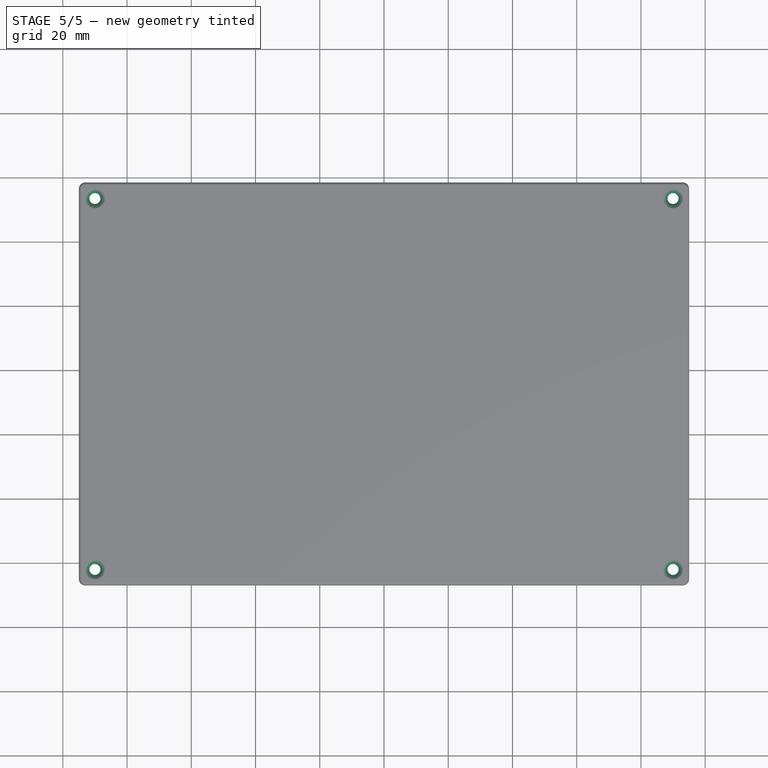
[diagram: stage 5 of 5 — top view after this stage's code; geometry added in this stage tinted green]
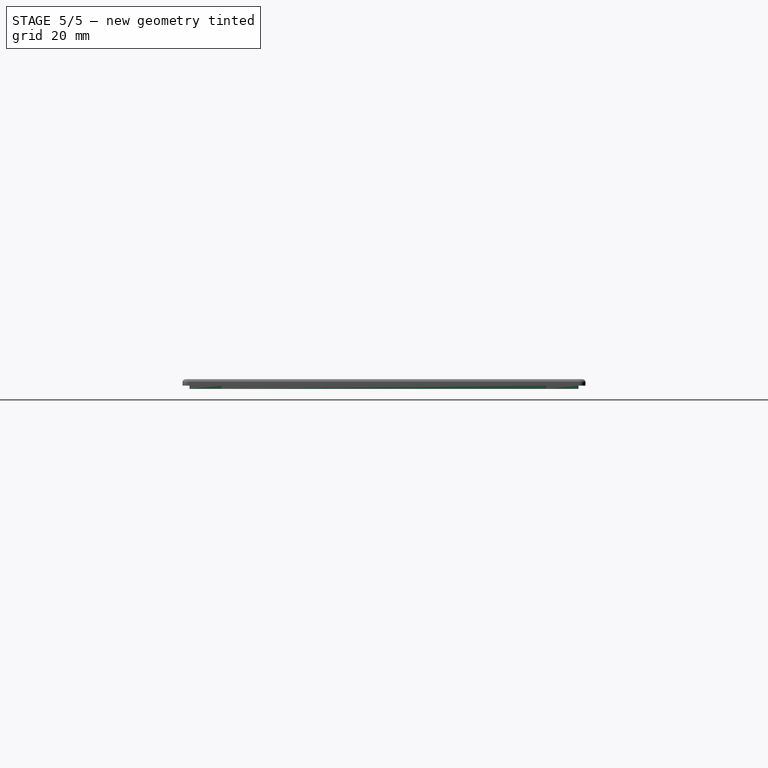
[diagram: stage 5 of 5 — right view after this stage's code; geometry added in this stage tinted green]
FEATURE [Sketcher::SketchObject] Sketch009
  ExternalGeometry = -> [Fillet]
  FullyConstrained = true
  MapMode = 5
  Placement = pos=(0,0,0) rot=(1,0,0;3.14159rad)
  Support = -> [Fillet]
  expr: Constraints[10] = <<Dimensions>>.Wall + 0.2 mm
  expr: Constraints[11] = <<Dimensions>>.Wall + 0.2 mm
  expr: Constraints[8] = <<Dimensions>>.Wall + 0.2 mm
  expr: Constraints[9] = <<Dimensions>>.Wall + 0.2 mm
  sketch-geometry (4):
    g0: LineSegment StartX=-12.8 StartY=4.8 StartZ=0 EndX=172.8 EndY=4.8 EndZ=0
    g1: LineSegment StartX=172.8 StartY=4.8 StartZ=0 EndX=172.8 EndY=-116.3 EndZ=0
    g2: LineSegment StartX=172.8 StartY=-116.3 StartZ=0 EndX=-12.8 EndY=-116.3 EndZ=0
    g3: LineSegment StartX=-12.8 StartY=-116.3 StartZ=0 EndX=-12.8 EndY=4.8 EndZ=0
  constraints (12):
    c: Coincident(g0,g1)
    c: Coincident(g1,g2)
    c: Coincident(g2,g3)
    c: Coincident(g3,g0)
    c: Horizontal(g0)
    c: Horizontal(g2)
    c: Vertical(g1)
    c: Vertical(g3)
    c: DistanceX(g0,g-5) = 2.2
    c: DistanceX(g-4,g0) = 2.2
    c: DistanceY(g0,g-3) = 2.2
    c: DistanceY(g-6,g1) = 2.2
FEATURE [PartDesign::Pad] Pad003
  BaseFeature = -> Fillet
  Direction = (0,0,-1)
  Length = 1
  Length2 = 10
  Profile = -> Sketch009
  ReferenceAxis = -> Sketch009 [N_Axis]
  Type = 0
  expr: Length = 1
FEATURE [PartDesign::Body] Body
  Group = -> [Sketch,Block,Pad,Thickness,Sketch001,Pocket,LinearPattern,Sketch002,Pocket001,Sketch005,Pad001,Sketch006,Sketch004,Pocket002,Hole,Sketch007,Hole001,Sketch010,Pad004,Sketch011,Hole002]
  Origin = -> Origin001
  Tip = -> Hole002
FEATURE [App::Part] Part  label="Base"
  Group = -> [Body]
  Origin = -> Origin
FEATURE [PartDesign::ShapeBinder] ShapeBinder001
  Support = -> [Hole002]
  TraceSupport = false
FEATURE [Sketcher::SketchObject] Sketch012
  ExternalGeometry = -> [ShapeBinder001]
  FullyConstrained = true
  MapMode = 5
  Placement = pos=(0,0,2) rot=(0,0,1;0rad)
  Support = -> [Pad003]
  sketch-geometry (4):
    g0: Circle CenterX=-10 CenterY=113.5 CenterZ=0 NormalX=0 NormalY=0 NormalZ=1 AngleXU=0 Radius=1.5
    g1: Circle CenterX=170 CenterY=113.5 CenterZ=0 NormalX=0 NormalY=0 NormalZ=1 AngleXU=0 Radius=1.5
    g2: Circle CenterX=170 CenterY=-2 CenterZ=0 NormalX=0 NormalY=0 NormalZ=1 AngleXU=0 Radius=1.5
    g3: Circle CenterX=-10 CenterY=-2 CenterZ=0 NormalX=0 NormalY=0 NormalZ=1 AngleXU=0 Radius=1.5
  constraints (8):
    c: Diameter(g0) = 3
    c: Equal(g1,g0)
    c: Equal(g2,g0)
    c: Equal(g3,g0)
    c: Coincident(g0,g-3)
    c: Coincident(g1,g-4)
    c: Coincident(g2,g-5)
    c: Coincident(g3,g-6)
FEATURE [PartDesign::Hole] Hole003
  BaseFeature = -> Pad003
  CustomThreadClearance = 0
  Depth = 3
  DepthType = 0
  Diameter = 3.4
  DrillForDepth = false
  DrillPoint = 1
  DrillPointAngle = 118
  HoleCutCountersinkAngle = 90
  HoleCutCustomValues = false
  HoleCutDepth = 0
  HoleCutDiameter = 6.1
  HoleCutType = 2
  ModelThread = false
  Profile = -> Sketch012
  Tapered = false
  TaperedAngle = 90
  ThreadClass = 0
  ThreadDepth = 3
  ThreadDepthType = 0
  ThreadDirection = 0
  ThreadFit = 0
  ThreadSize = 9
  ThreadType = 1
  Threaded = false
  UseCustomThreadClearance = false
  expr: Depth = <<Dimensions>>.Wall + 1 mm
FEATURE [Sketcher::SketchObject] Sketch013
  ExternalGeometry = -> [Hole003]
  FullyConstrained = true
  MapMode = 5
  Placement = pos=(0,0,-1) rot=(1,0,0;3.14159rad)
  Support = -> [Hole003]
  sketch-geometry (4):
    g0: LineSegment StartX=160.8 StartY=-5.2 StartZ=0 EndX=172.8 EndY=-5.2 EndZ=0
    g1: LineSegment StartX=172.8 StartY=-5.2 StartZ=0 EndX=172.8 EndY=-106.3 EndZ=0
    g2: LineSegment StartX=172.8 StartY=-106.3 StartZ=0 EndX=160.8 EndY=-106.3 EndZ=0
    g3: LineSegment StartX=160.8 StartY=-106.3 StartZ=0 EndX=160.8 EndY=-5.2 EndZ=0
  constraints (12):
    c: Coincident(g0,g1)
    c: Coincident(g1,g2)
    c: Coincident(g2,g3)
    c: Coincident(g3,g0)
    c: Horizontal(g0)
    c: Horizontal(g2)
    c: Vertical(g1)
    c: Vertical(g3)
    c: DistanceX(g0,g0) = 12
    c: DistanceY(g0,g-6) = 10
    c: DistanceY(g-6,g1) = 10
    c: DistanceX(g0,g-6) = 0
FEATURE [PartDesign::Pocket] Pocket003
  BaseFeature = -> Hole003
  Direction = (0,0,1)
  Length = 1
  Length2 = 5
  Profile = -> Sketch013
  ReferenceAxis = -> Sketch013 [N_Axis]
  Type = 0
FEATURE [PartDesign::Body] Body001
  Group = -> [Sketch008,ShapeBinder,Pad002,Fillet,Sketch009,Pad003,ShapeBinder001,Sketch012,Hole003,Sketch013,Pocket003]
  Origin = -> Origin003
  Placement = pos=(0,0,55) rot=(0,0,1;0rad)
  Tip = -> Pocket003
FEATURE [App::Part] Part001  label="Lid"
  Group = -> [Body001]
  Origin = -> Origin002
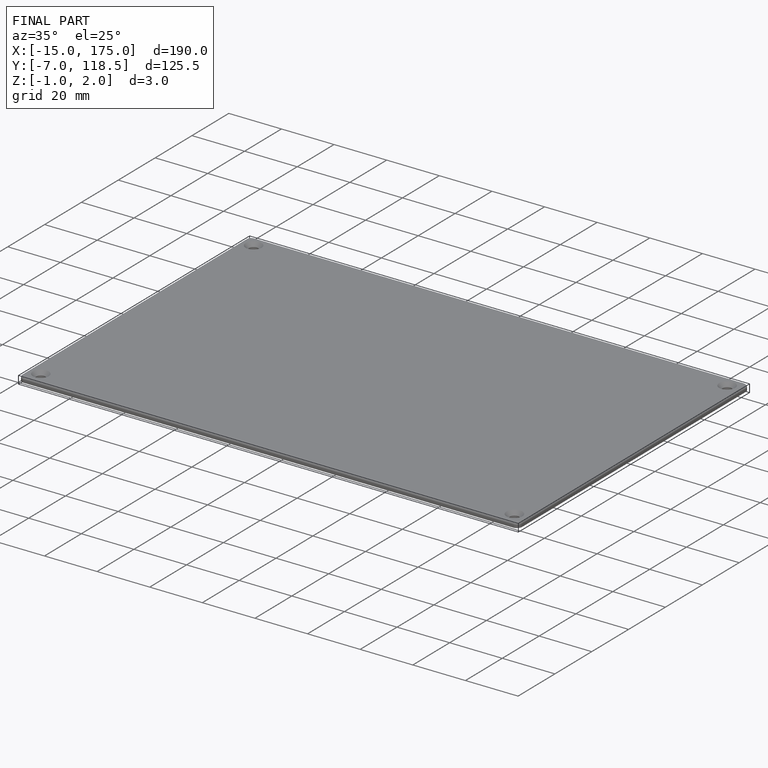
[diagram: finished part — iso view with bounding-box wireframe]
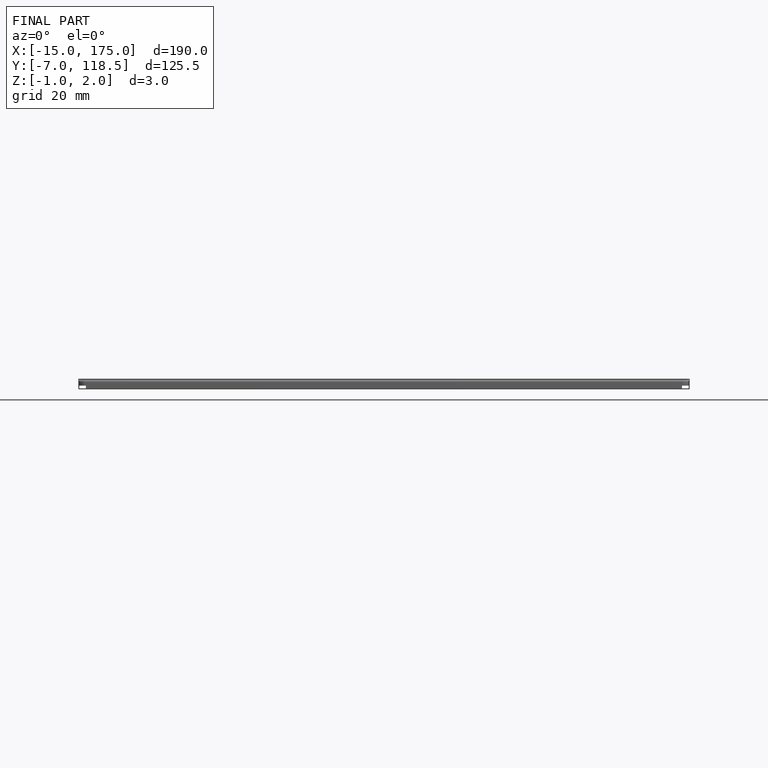
[diagram: finished part — front view with bounding-box wireframe]
